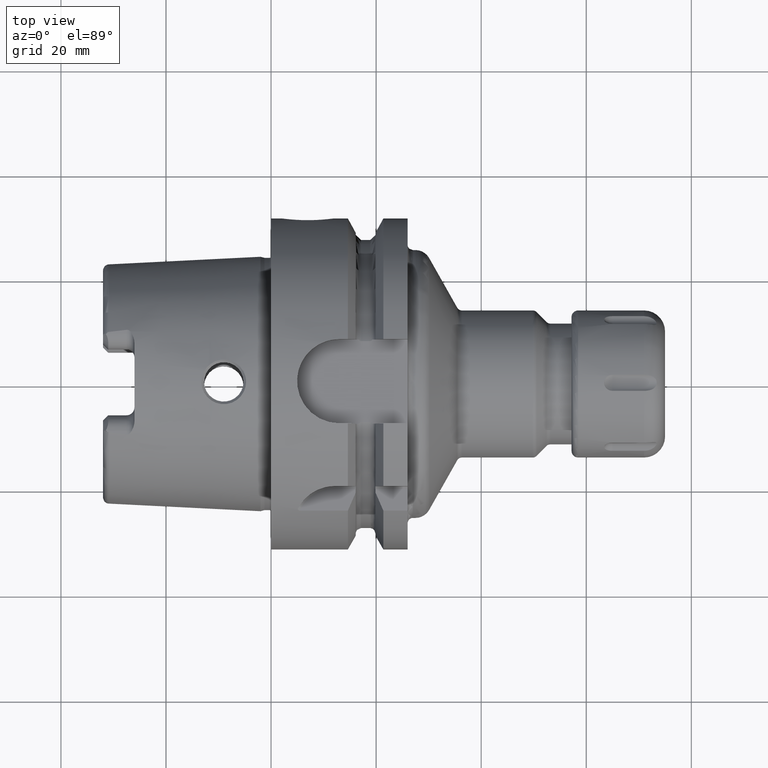
[diagram: clean part render]
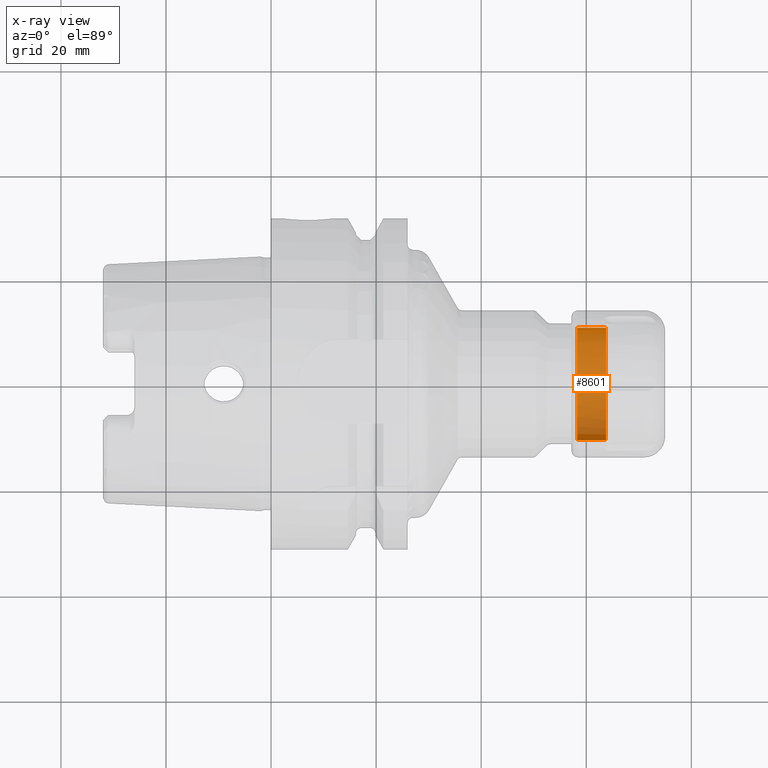
[diagram: x-ray — body ghosted, one internal face saturated and labeled with its STEP entity id]
A machine part, top view, then the same camera in x-ray: the body is ghosted and one INTERNAL B-rep face — a face not visible from any outside direction — is saturated and labeled: STEP entity #8601.
In plain terms, the highlighted cylindrical surface (partial cylindrical patch) has radius 10.69 mm, axis along (1, 0, 0).
Its self-contained STEP definition (entity closure, byte-faithful):
#7472=CARTESIAN_POINT('',(6.55E0,0.E0,0.E0));
#7473=DIRECTION('',(1.E0,0.E0,0.E0));
#7474=DIRECTION('',(0.E0,-1.E0,0.E0));
#7475=AXIS2_PLACEMENT_3D('',#7472,#7473,#7474);
#7481=CARTESIAN_POINT('',(6.55E0,0.E0,0.E0));
#7482=DIRECTION('',(1.E0,0.E0,0.E0));
#7483=DIRECTION('',(0.E0,0.E0,-1.E0));
#7484=AXIS2_PLACEMENT_3D('',#7481,#7482,#7483);
#7500=CARTESIAN_POINT('',(1.06E0,0.E0,0.E0));
#7501=DIRECTION('',(1.E0,0.E0,0.E0));
#7502=DIRECTION('',(0.E0,-1.E0,0.E0));
#7503=AXIS2_PLACEMENT_3D('',#7500,#7501,#7502);
#7505=DIRECTION('',(1.E0,0.E0,0.E0));
#7506=VECTOR('',#7505,5.49E0);
#7507=CARTESIAN_POINT('',(1.06E0,-1.069E1,0.E0));
#7508=LINE('',#7507,#7506);
#7570=DIRECTION('',(1.E0,0.E0,0.E0));
#7571=VECTOR('',#7570,5.49E0);
#7572=CARTESIAN_POINT('',(1.06E0,1.069E1,0.E0));
#7573=LINE('',#7572,#7571);
#7727=CARTESIAN_POINT('',(6.55E0,0.E0,-1.069E1));
#7728=VERTEX_POINT('',#7727);
#7731=CARTESIAN_POINT('',(6.55E0,1.069E1,0.E0));
#7732=VERTEX_POINT('',#7731);
#7733=CARTESIAN_POINT('',(6.55E0,-1.069E1,0.E0));
#7734=VERTEX_POINT('',#7733);
#7797=CARTESIAN_POINT('',(1.06E0,1.069E1,0.E0));
#7798=CARTESIAN_POINT('',(1.06E0,-1.069E1,0.E0));
#7799=VERTEX_POINT('',#7797);
#7800=VERTEX_POINT('',#7798);
#8586=CARTESIAN_POINT('',(0.E0,0.E0,0.E0));
#8587=DIRECTION('',(1.E0,0.E0,0.E0));
#8588=DIRECTION('',(0.E0,1.E0,0.E0));
#8589=AXIS2_PLACEMENT_3D('',#8586,#8587,#8588);
#8590=CYLINDRICAL_SURFACE('',#8589,1.069E1);
#8592=ORIENTED_EDGE('',*,*,#8591,.T.);
#8594=ORIENTED_EDGE('',*,*,#8593,.T.);
#8595=ORIENTED_EDGE('',*,*,#8577,.F.);
#8596=ORIENTED_EDGE('',*,*,#8566,.F.);
#8598=ORIENTED_EDGE('',*,*,#8597,.F.);
#8599=EDGE_LOOP('',(#8592,#8594,#8595,#8596,#8598));
#8600=FACE_OUTER_BOUND('',#8599,.F.);
#8601=ADVANCED_FACE('',(#8600),#8590,.F.);
#7476=CIRCLE('',#7475,1.069E1);
#7485=CIRCLE('',#7484,1.069E1);
#7504=CIRCLE('',#7503,1.069E1);
#8566=EDGE_CURVE('',#7734,#7728,#7476,.T.);
#8577=EDGE_CURVE('',#7728,#7732,#7485,.T.);
#8591=EDGE_CURVE('',#7800,#7799,#7504,.T.);
#8593=EDGE_CURVE('',#7799,#7732,#7573,.T.);
#8597=EDGE_CURVE('',#7800,#7734,#7508,.T.);